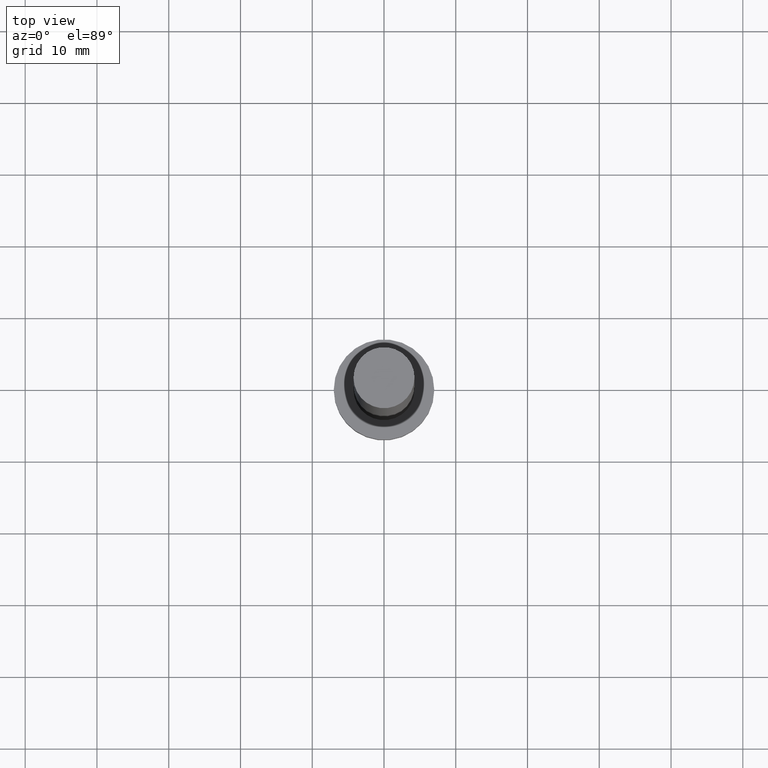
[diagram: clean part render]
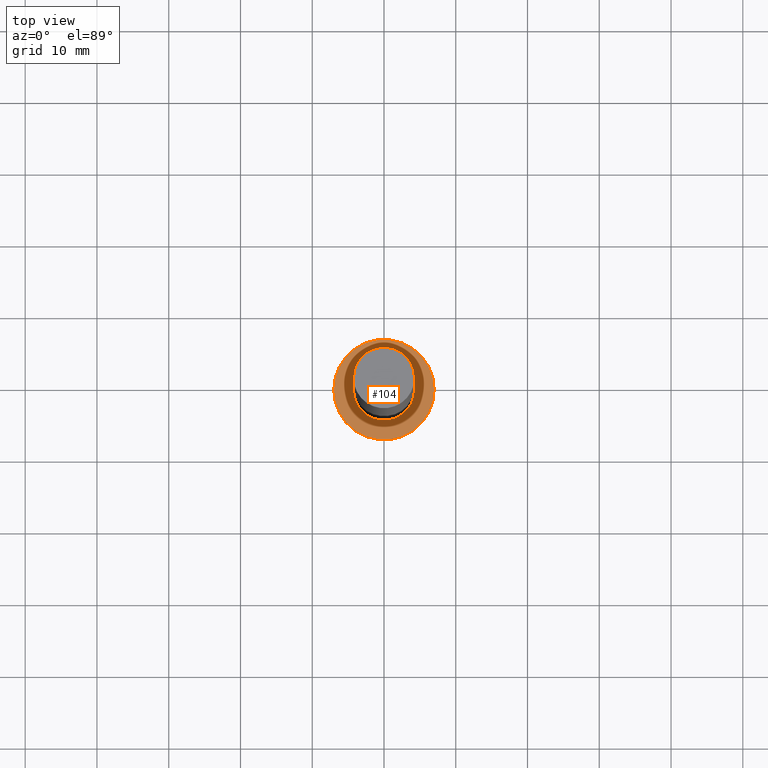
[diagram: same view with one face highlighted and labeled with its STEP entity id]
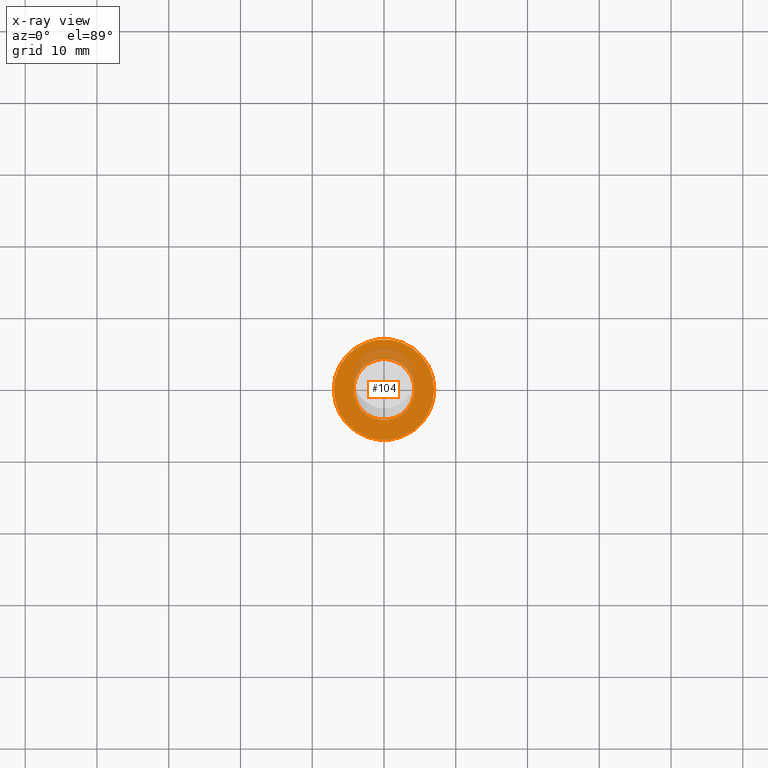
[diagram: x-ray of the same camera — body ghosted, the highlighted face saturated]
A machine part, top view. The second image highlights one B-rep face of the part: STEP entity #104.
The next image is the same camera in x-ray: the body ghosted, the highlighted face saturated — about 15% of this face is hidden behind the body in this view.
In plain terms, the highlighted planar face has unit normal (0, 0, 1).
Its self-contained STEP definition (entity closure, byte-faithful):
#18 = CIRCLE ( 'NONE', #206, 4.250000000000000000 ) ;
#29 = EDGE_LOOP ( 'NONE', ( #169, #251 ) ) ;
#31 = EDGE_CURVE ( 'NONE', #254, #73, #96, .T. ) ;
#35 = CARTESIAN_POINT ( 'NONE',  ( 0.000000000000000000, 0.000000000000000000, 5.000000000000000000 ) ) ;
#39 = DIRECTION ( 'NONE',  ( 1.000000000000000000, 0.000000000000000000, 0.000000000000000000 ) ) ;
#45 = EDGE_CURVE ( 'NONE', #73, #254, #18, .T. ) ;
#48 = CARTESIAN_POINT ( 'NONE',  ( 4.250000000000000000, 5.204748896376250699E-16, 5.000000000000000000 ) ) ;
#58 = DIRECTION ( 'NONE',  ( 1.000000000000000000, 0.000000000000000000, 0.000000000000000000 ) ) ;
#63 = DIRECTION ( 'NONE',  ( 0.000000000000000000, 0.000000000000000000, 1.000000000000000000 ) ) ;
#64 = EDGE_CURVE ( 'NONE', #131, #117, #98, .T. ) ;
#67 = EDGE_CURVE ( 'NONE', #117, #131, #242, .T. ) ;
#70 = AXIS2_PLACEMENT_3D ( 'NONE', #232, #121, #188 ) ;
#73 = VERTEX_POINT ( 'NONE', #122 ) ;
#96 = CIRCLE ( 'NONE', #70, 4.250000000000000000 ) ;
#97 = ORIENTED_EDGE ( 'NONE', *, *, #67, .T. ) ;
#98 = CIRCLE ( 'NONE', #109, 7.000000000000000000 ) ;
#104 = ADVANCED_FACE ( 'NONE', ( #125, #172 ), #255, .T. ) ;
#109 = AXIS2_PLACEMENT_3D ( 'NONE', #35, #137, #39 ) ;
#111 = DIRECTION ( 'NONE',  ( 1.000000000000000000, 0.000000000000000000, -0.000000000000000000 ) ) ;
#117 = VERTEX_POINT ( 'NONE', #152 ) ;
#121 = DIRECTION ( 'NONE',  ( 0.000000000000000000, 0.000000000000000000, 1.000000000000000000 ) ) ;
#122 = CARTESIAN_POINT ( 'NONE',  ( -4.250000000000000000, 0.000000000000000000, 5.000000000000000000 ) ) ;
#125 = FACE_BOUND ( 'NONE', #29, .T. ) ;
#131 = VERTEX_POINT ( 'NONE', #240 ) ;
#135 = DIRECTION ( 'NONE',  ( 0.000000000000000000, 0.000000000000000000, 1.000000000000000000 ) ) ;
#137 = DIRECTION ( 'NONE',  ( 0.000000000000000000, 0.000000000000000000, 1.000000000000000000 ) ) ;
#142 = DIRECTION ( 'NONE',  ( 1.000000000000000000, 0.000000000000000000, 0.000000000000000000 ) ) ;
#149 = DIRECTION ( 'NONE',  ( 0.000000000000000000, 0.000000000000000000, 1.000000000000000000 ) ) ;
#152 = CARTESIAN_POINT ( 'NONE',  ( 7.000000000000000000, 8.572527594031473190E-16, 5.000000000000000000 ) ) ;
#153 = EDGE_LOOP ( 'NONE', ( #187, #97 ) ) ;
#164 = AXIS2_PLACEMENT_3D ( 'NONE', #243, #149, #111 ) ;
#169 = ORIENTED_EDGE ( 'NONE', *, *, #45, .F. ) ;
#172 = FACE_OUTER_BOUND ( 'NONE', #153, .T. ) ;
#187 = ORIENTED_EDGE ( 'NONE', *, *, #64, .T. ) ;
#188 = DIRECTION ( 'NONE',  ( 1.000000000000000000, 0.000000000000000000, 0.000000000000000000 ) ) ;
#206 = AXIS2_PLACEMENT_3D ( 'NONE', #225, #135, #58 ) ;
#212 = AXIS2_PLACEMENT_3D ( 'NONE', #233, #63, #142 ) ;
#225 = CARTESIAN_POINT ( 'NONE',  ( 0.000000000000000000, 0.000000000000000000, 5.000000000000000000 ) ) ;
#232 = CARTESIAN_POINT ( 'NONE',  ( 0.000000000000000000, 0.000000000000000000, 5.000000000000000000 ) ) ;
#233 = CARTESIAN_POINT ( 'NONE',  ( 0.000000000000000000, 0.000000000000000000, 5.000000000000000000 ) ) ;
#240 = CARTESIAN_POINT ( 'NONE',  ( -7.000000000000000000, 0.000000000000000000, 5.000000000000000000 ) ) ;
#242 = CIRCLE ( 'NONE', #212, 7.000000000000000000 ) ;
#243 = CARTESIAN_POINT ( 'NONE',  ( 0.000000000000000000, 0.000000000000000000, 5.000000000000000000 ) ) ;
#251 = ORIENTED_EDGE ( 'NONE', *, *, #31, .F. ) ;
#254 = VERTEX_POINT ( 'NONE', #48 ) ;
#255 = PLANE ( 'NONE',  #164 ) ;